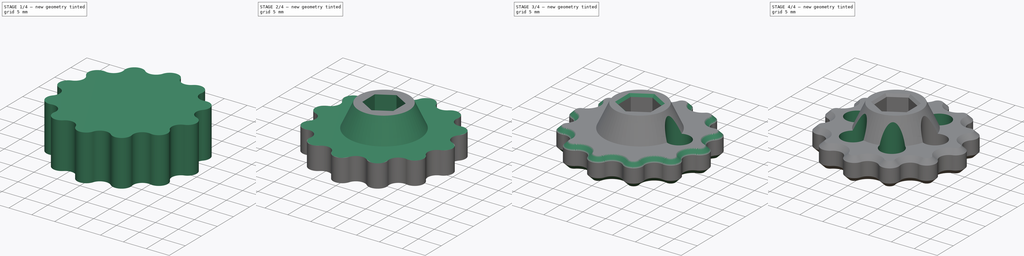
[diagram: build sequence overview — one tinted view per stage of 4, left to right]
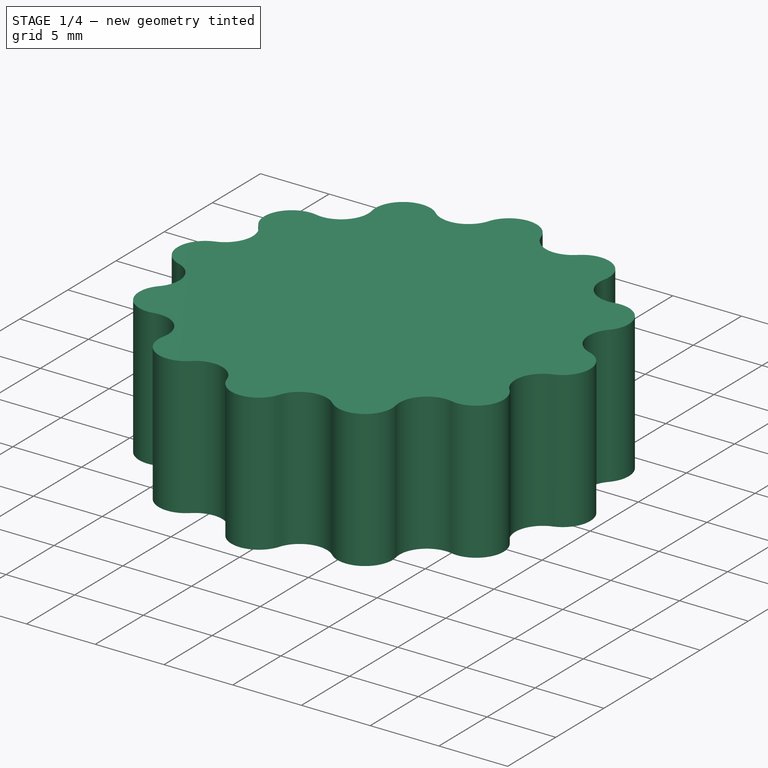
[diagram: stage 1 of 4 — iso view after this stage's code; geometry added in this stage tinted green]
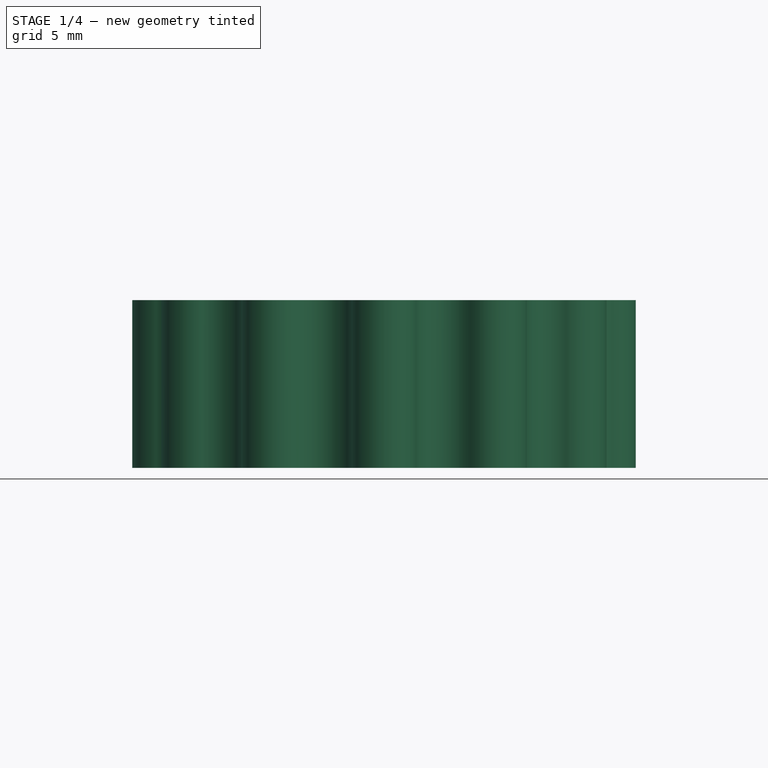
[diagram: stage 1 of 4 — front view after this stage's code; geometry added in this stage tinted green]
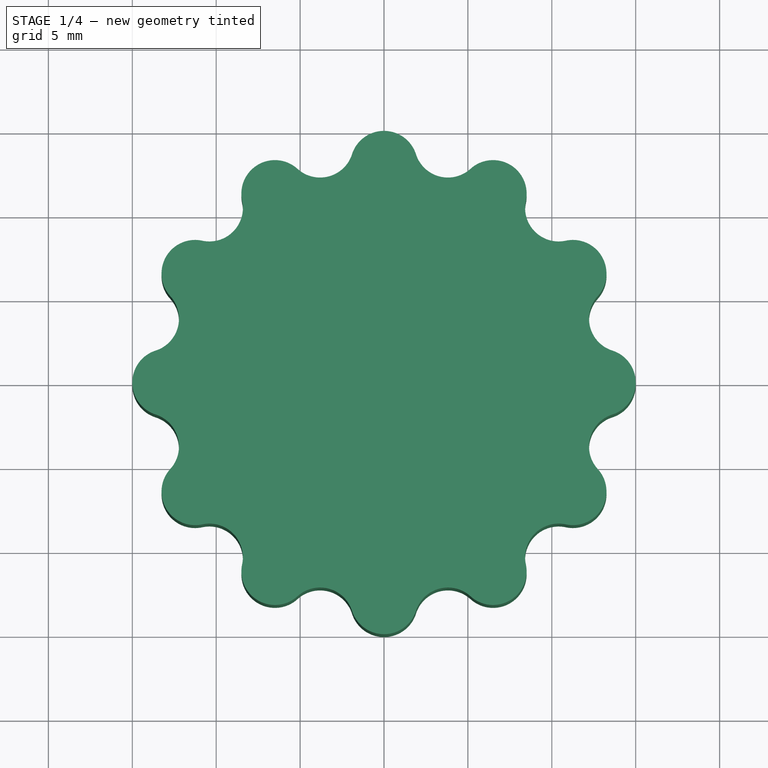
[diagram: stage 1 of 4 — top view after this stage's code; geometry added in this stage tinted green]
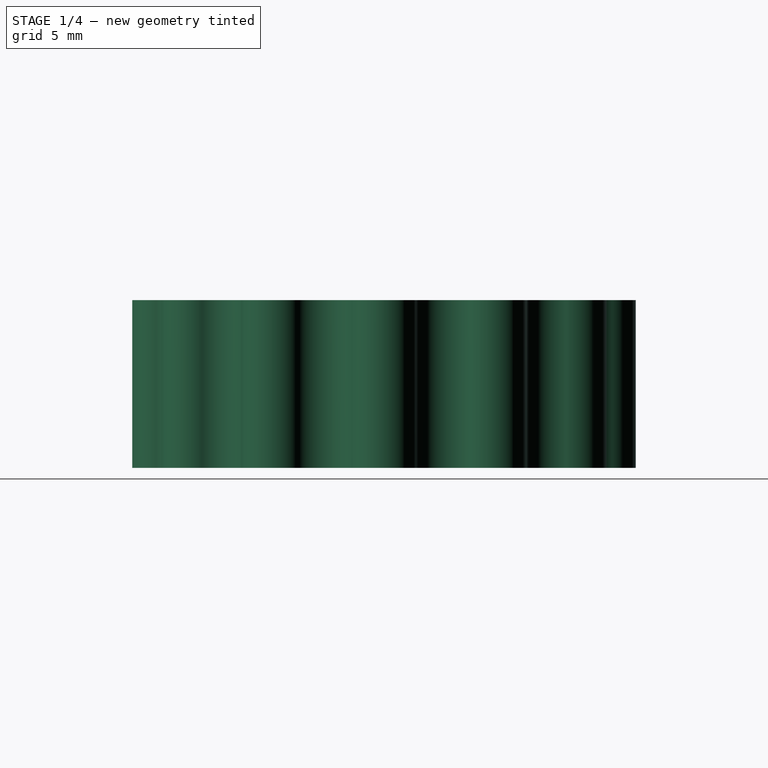
[diagram: stage 1 of 4 — right view after this stage's code; geometry added in this stage tinted green]
FCSTD DOCUMENT  (FreeCAD 0.20R24451 (Git))
Label: Bit-Handrad
License: All rights reserved
LicenseURL: http://en.wikipedia.org/wiki/All_rights_reserved
objects: Sketcher::SketchObject×5, PartDesign::Pocket×3, PartDesign::Chamfer×3, PartDesign::PolarPattern×2, PartDesign::Pad×1, PartDesign::Groove×1, PartDesign::Body×1
note: 24 computed .brp shape members not serialized (recipe doc carries the construction recipe); baked Part::Feature solids carry a one-line shape summary decoded from their .brp

FEATURE [Sketcher::SketchObject] Sketch
  FullyConstrained = true
  MapMode = 5
  Support = -> [XY_Plane]
  sketch-geometry (5):
    g0: ArcOfCircle CenterX=0 CenterY=13 CenterZ=0 NormalX=0 NormalY=0 NormalZ=1 AngleXU=0 Radius=2 StartAngle=0.309569 EndAngle=1.5708
    g1: ArcOfCircle CenterX=3.80986 CenterY=14.2186 CenterZ=0 NormalX=0 NormalY=0 NormalZ=1 AngleXU=0 Radius=2 StartAngle=3.45116 EndAngle=5.45002
    g2: ArcOfCircle CenterX=6.5 CenterY=11.2583 CenterZ=0 NormalX=0 NormalY=0 NormalZ=1 AngleXU=0 Radius=2 StartAngle=1.0472 EndAngle=2.30843
    g3: LineSegment StartX=0 StartY=15 StartZ=0 EndX=0 EndY=0 EndZ=0
    g4: LineSegment StartX=0 StartY=0 StartZ=0 EndX=7.5 EndY=12.9904 EndZ=0
  constraints (15):
    c: PointOnObject(g0,g-2)
    c: PointOnObject(g0,g-2)
    c: Equal(g0,g1)
    c: Equal(g1,g2)
    c: Tangent(g1,g0) = 1.5708
    c: Tangent(g2,g1) = 1.5708
    c: Coincident(g3,g-1)
    c: Coincident(g3,g4)
    c: Coincident(g4,g2)
    c: PointOnObject(g2,g4)
    c: Coincident(g0,g3)
    c: Equal(g3,g4)
    c: Radius(g0) = 2
    c: Angle(g4,g3) = 0.523599
    c: DistanceY(g3,g3) = 15
FEATURE [PartDesign::Pad] Pad
  Direction = (1,1,1)
  Length = 10
  Length2 = 100
  Profile = -> Sketch
  Refine = true
  Type = 0
FEATURE [PartDesign::PolarPattern] PolarPattern
  Angle = 360
  Axis = -> Sketch [N_Axis]
  BaseFeature = -> Pad
  Occurrences = 12
  Originals = -> [Pad]
  Overlap = 0
  Refine = true
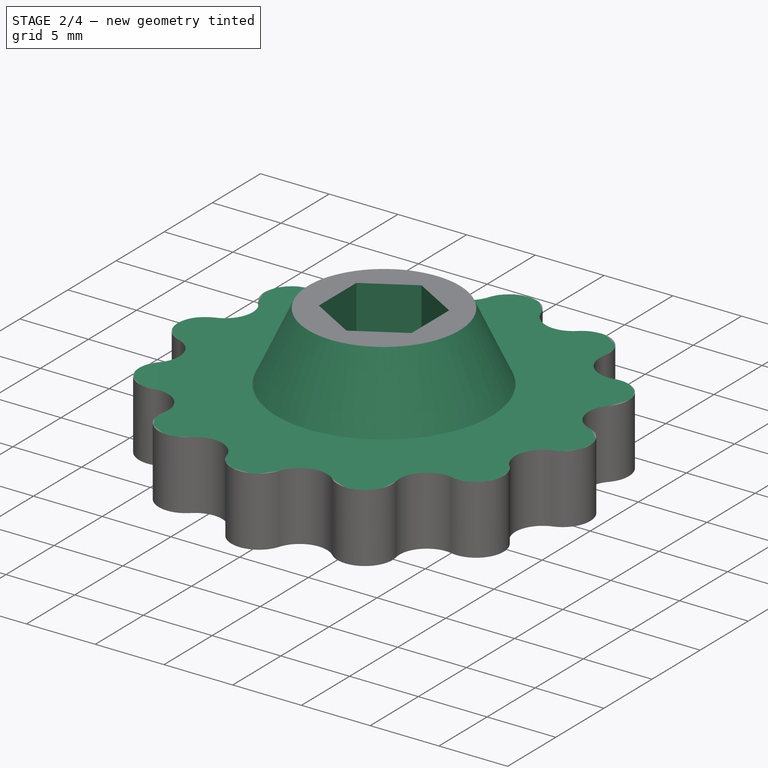
[diagram: stage 2 of 4 — iso view after this stage's code; geometry added in this stage tinted green]
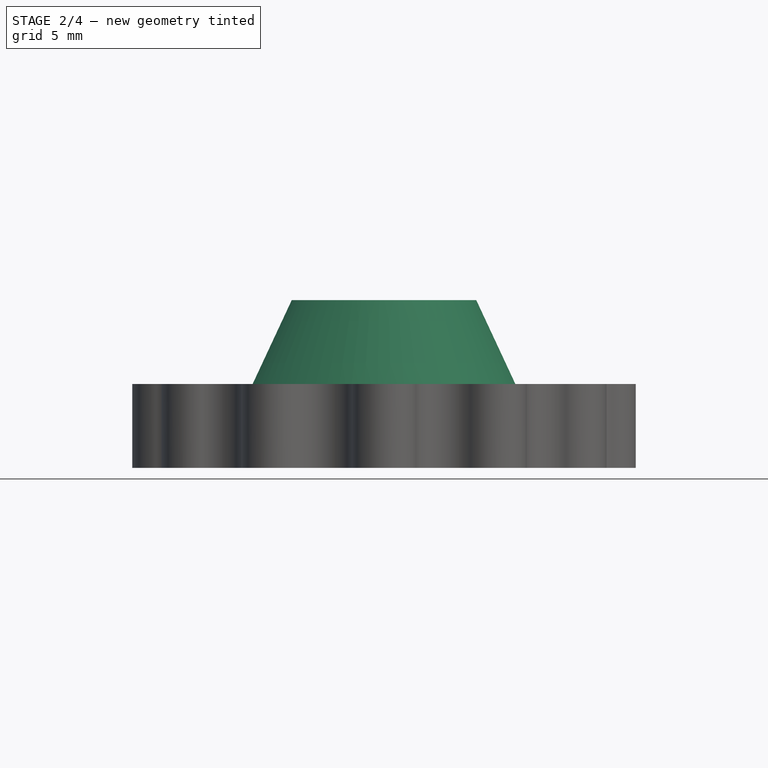
[diagram: stage 2 of 4 — front view after this stage's code; geometry added in this stage tinted green]
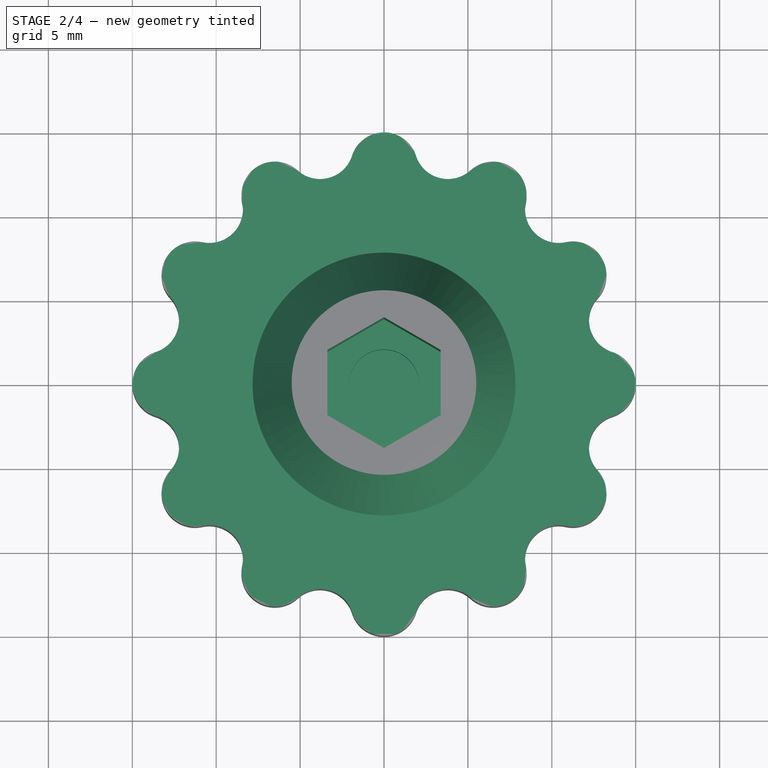
[diagram: stage 2 of 4 — top view after this stage's code; geometry added in this stage tinted green]
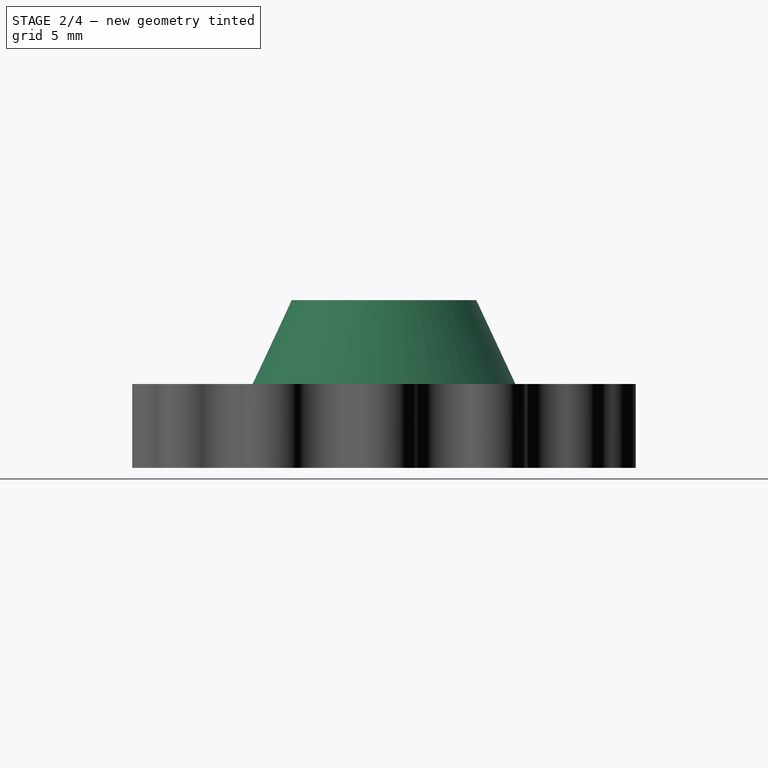
[diagram: stage 2 of 4 — right view after this stage's code; geometry added in this stage tinted green]
FEATURE [Sketcher::SketchObject] Sketch002  label="Sk Hex-Aufnahme"
  AttachmentOffset = pos=(0,0,3) rot=(0,0,1;0rad)
  FullyConstrained = true
  MapMode = 5
  Placement = pos=(0,0,3) rot=(0,0,1;0rad)
  Support = -> [XY_Plane]
  sketch-geometry (7):
    g0: LineSegment StartX=3.375 StartY=-1.94856 StartZ=0 EndX=3.375 EndY=1.94856 EndZ=0
    g1: LineSegment StartX=3.375 StartY=1.94856 StartZ=0 EndX=4e-16 EndY=3.89711 EndZ=0
    g2: LineSegment StartX=4e-16 StartY=3.89711 StartZ=0 EndX=-3.375 EndY=1.94856 EndZ=0
    g3: LineSegment StartX=-3.375 StartY=1.94856 StartZ=0 EndX=-3.375 EndY=-1.94856 EndZ=0
    g4: LineSegment StartX=-3.375 StartY=-1.94856 StartZ=0 EndX=0 EndY=-3.89711 EndZ=0
    g5: LineSegment StartX=0 StartY=-3.89711 StartZ=0 EndX=3.375 EndY=-1.94856 EndZ=0
    g6: Circle CenterX=0 CenterY=0 CenterZ=0 NormalX=0 NormalY=0 NormalZ=1 AngleXU=0 Radius=3.89711
  constraints (16):
    c: Coincident(g0,g1)
    c: Coincident(g1,g2)
    c: Coincident(g2,g3)
    c: Coincident(g3,g4)
    c: Coincident(g4,g5)
    c: Coincident(g5,g0)
    c: Equal(g0, g1-g5) x5
    c: PointOnObject(g0,g6)
    c: PointOnObject(g1,g6)
    c: PointOnObject(g2,g6)
    c: PointOnObject(g3,g6)
    c: PointOnObject(g4,g6)
    c: PointOnObject(g5,g6)
    c: Coincident(g6,g-1)
    c: Vertical(g0)
    c: DistanceX(g3,g0) = 6.75
FEATURE [PartDesign::Pocket] Pocket001  label="Hex-Aufnahme"
  BaseFeature = -> PolarPattern
  Length = 5
  Length2 = 100
  Profile = -> Sketch002
  Refine = true
  Reversed = true
  Type = 1
FEATURE [Sketcher::SketchObject] Sketch003  label="Sk Magnetaufnahme"
  AttachmentOffset = pos=(0,0,3) rot=(0,0,1;0rad)
  FullyConstrained = true
  MapMode = 5
  Placement = pos=(0,0,3) rot=(0,0,1;0rad)
  Support = -> [XY_Plane]
  sketch-geometry (1):
    g0: Circle CenterX=0 CenterY=0 CenterZ=0 NormalX=0 NormalY=0 NormalZ=1 AngleXU=0 Radius=2.1
  constraints (2):
    c: Coincident(g0,g-1)
    c: Diameter(g0) = 4.2
FEATURE [PartDesign::Pocket] Pocket  label="Magnetaufnahme"
  BaseFeature = -> Pocket001
  Length = 2
  Length2 = 100
  Profile = -> Sketch003
  Refine = true
  Type = 0
FEATURE [Sketcher::SketchObject] Sketch004  label="Sk Durchbruch"
  FullyConstrained = true
  MapMode = 5
  Support = -> [XY_Plane]
  sketch-geometry (1):
    g0: Circle CenterX=8.5 CenterY=0 CenterZ=0 NormalX=0 NormalY=0 NormalZ=1 AngleXU=0 Radius=2.5
  constraints (3):
    c: PointOnObject(g0,g-1)
    c: Diameter(g0) = 5
    c: DistanceX(g-1,g0) = 8.5
FEATURE [Sketcher::SketchObject] Sketch005  label="Sk Abstufung"
  FullyConstrained = true
  MapMode = 5
  Placement = pos=(0,0,0) rot=(0.57735,0.57735,0.57735;2.0944rad)
  Support = -> [YZ_Plane]
  expr: Constraints[7] = Pad.Length
  sketch-geometry (4):
    g0: LineSegment StartX=5.5 StartY=10 StartZ=0 EndX=7.83154 EndY=5 EndZ=0
    g1: LineSegment StartX=7.83154 StartY=5 StartZ=0 EndX=17.5 EndY=5 EndZ=0
    g2: LineSegment StartX=17.5 StartY=5 StartZ=0 EndX=17.5 EndY=10 EndZ=0
    g3: LineSegment StartX=17.5 StartY=10 StartZ=0 EndX=5.5 EndY=10 EndZ=0
  constraints (12):
    c: Coincident(g0,g1)
    c: Horizontal(g1)
    c: Coincident(g1,g2)
    c: Vertical(g2)
    c: Coincident(g2,g3)
    c: Coincident(g3,g0)
    c: Horizontal(g3)
    c: DistanceY(g-1,g0) = 10
    c: DistanceY(g2,g2) = 5
    c: DistanceX(g-1,g0) = 5.5
    c: DistanceX(g3,g3) = 12
    c: Angle(g1,g0) = 2.00713
FEATURE [PartDesign::Groove] Groove  label="Abstufung"
  Angle = 360
  Axis = (-3e-16,3e-16,1)
  Base = (0,0,0)
  BaseFeature = -> Pocket
  Profile = -> Sketch005
  ReferenceAxis = -> Z_Axis
  Refine = true
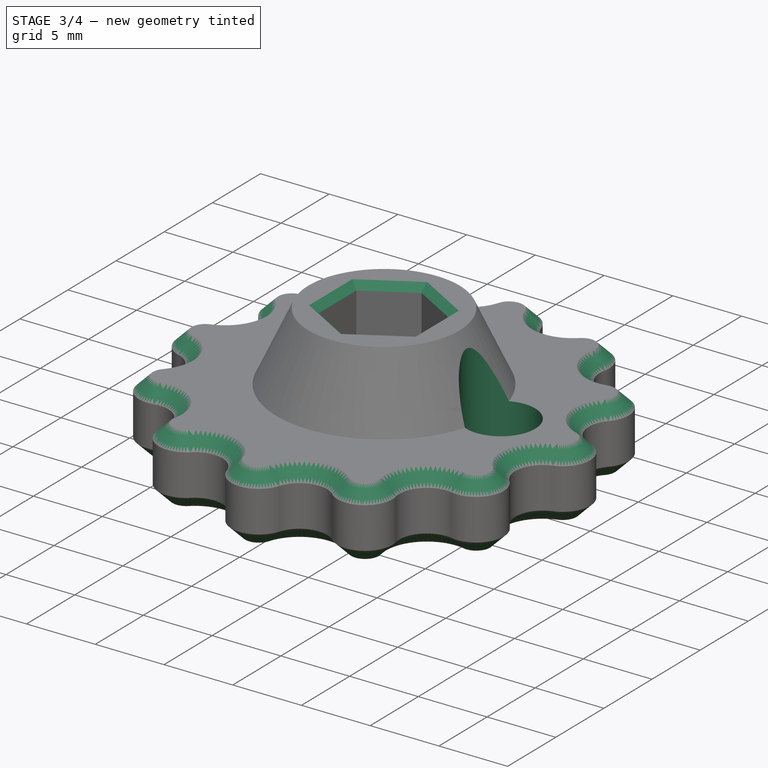
[diagram: stage 3 of 4 — iso view after this stage's code; geometry added in this stage tinted green]
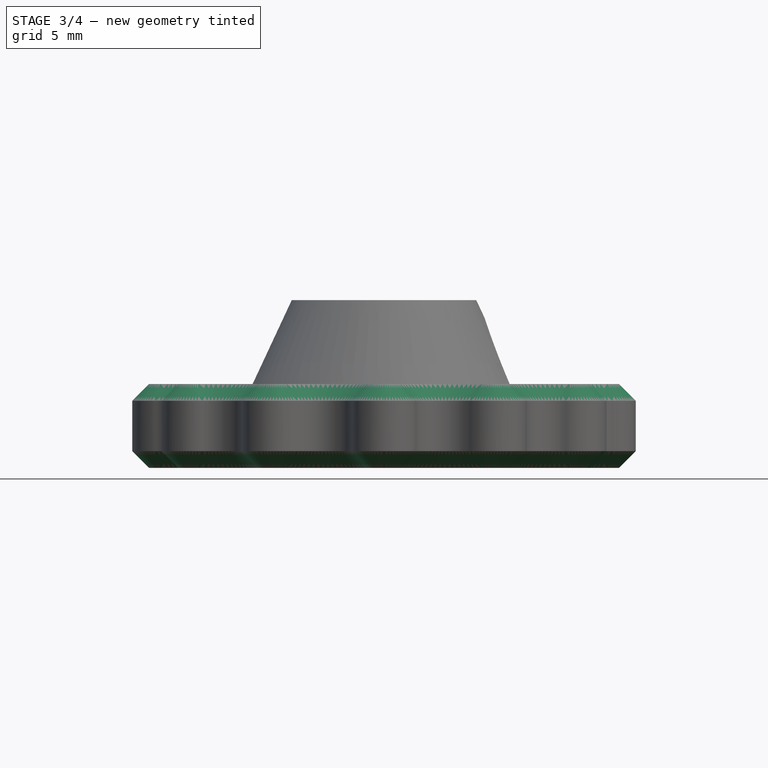
[diagram: stage 3 of 4 — front view after this stage's code; geometry added in this stage tinted green]
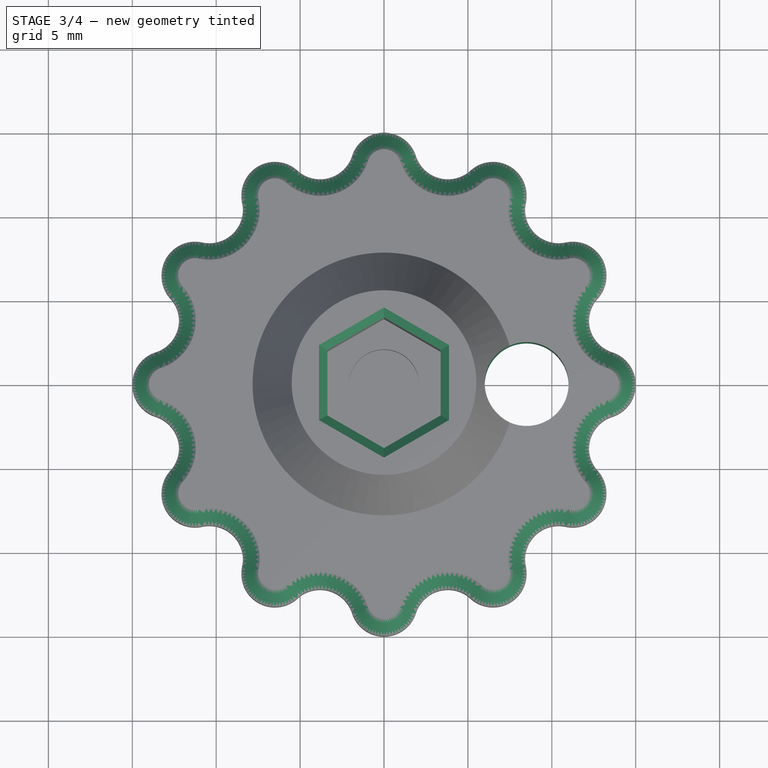
[diagram: stage 3 of 4 — top view after this stage's code; geometry added in this stage tinted green]
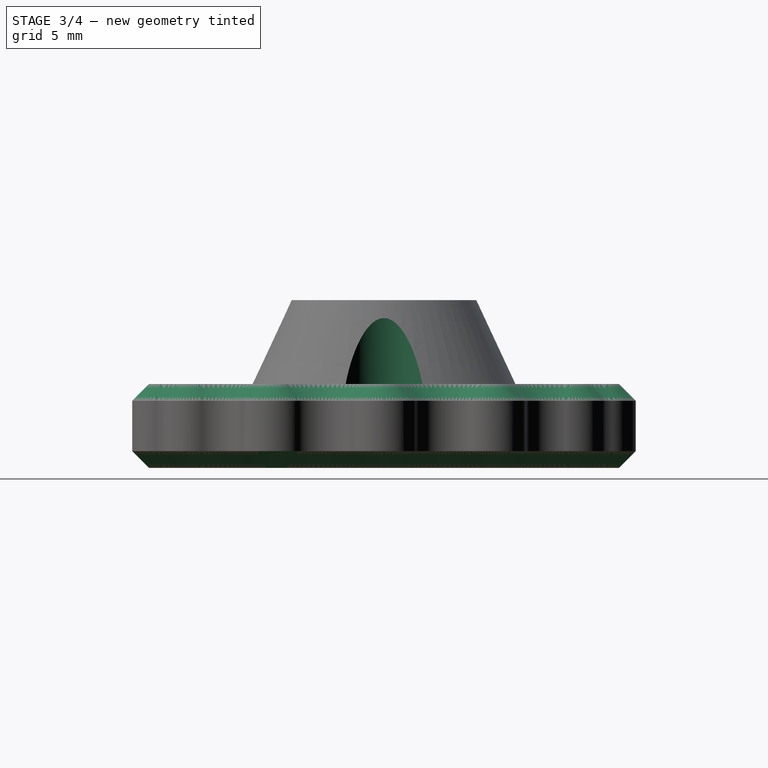
[diagram: stage 3 of 4 — right view after this stage's code; geometry added in this stage tinted green]
FEATURE [PartDesign::Chamfer] Chamfer  label="Fase außen"
  Angle = 45
  Base = -> Groove [Edge57,Edge17]
  BaseFeature = -> Groove
  ChamferType = 0
  FlipDirection = false
  Refine = true
  Size = 1
  Size2 = 1
  SupportTransform = false
FEATURE [PartDesign::Chamfer] Chamfer001  label="Fase Hexaufnahme"
  Angle = 45
  Base = -> Chamfer [Edge209,Edge211,Edge213,Edge208,Edge210,Edge212]
  BaseFeature = -> Chamfer
  ChamferType = 0
  FlipDirection = false
  Refine = true
  Size = 0.5
  Size2 = 1
  SupportTransform = false
FEATURE [PartDesign::Pocket] Pocket002  label="Durchbruch"
  BaseFeature = -> Chamfer001
  Length = 5
  Length2 = 100
  Midplane = true
  Profile = -> Sketch004
  Refine = true
  Type = 1
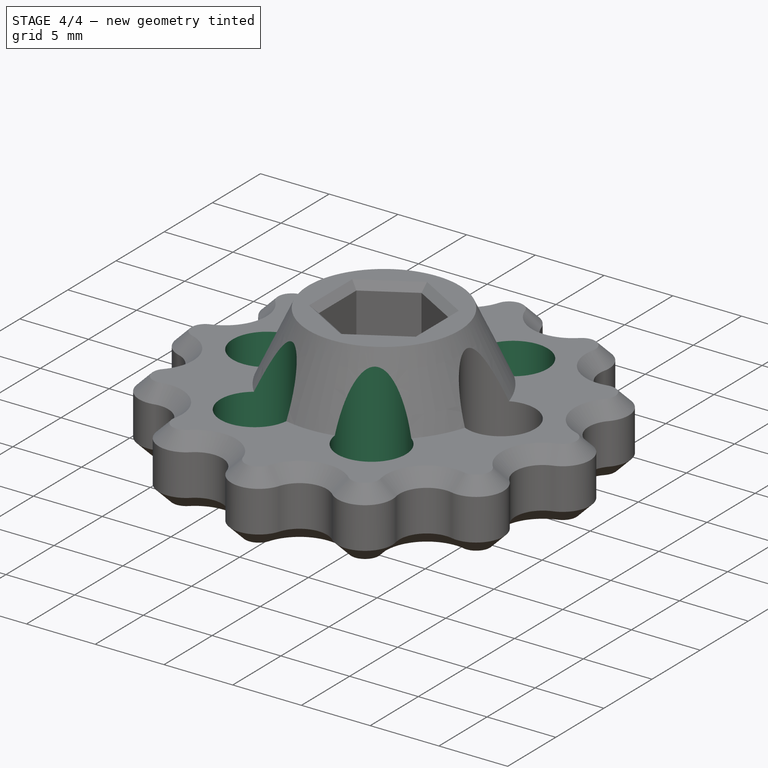
[diagram: stage 4 of 4 — iso view after this stage's code; geometry added in this stage tinted green]
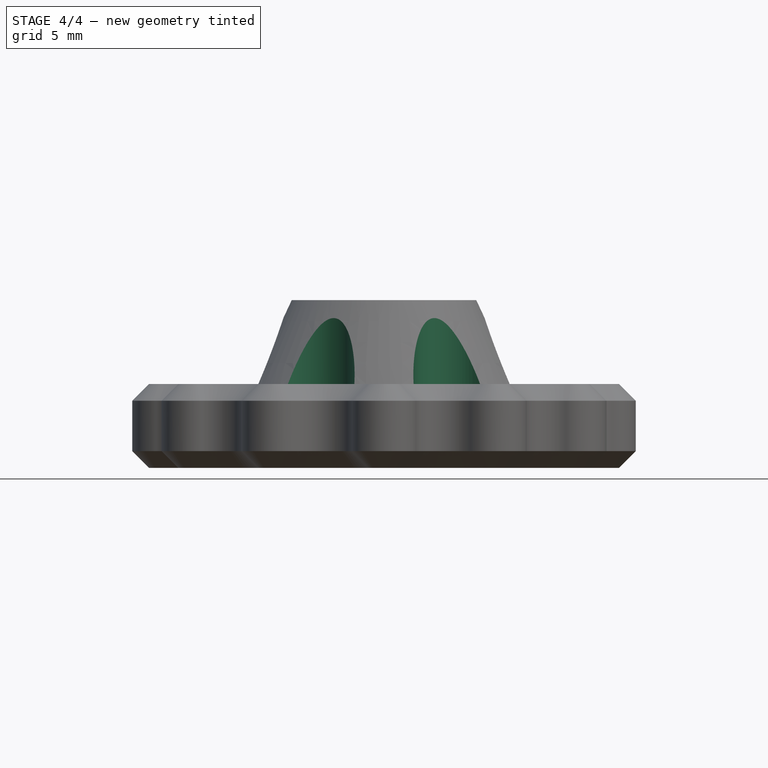
[diagram: stage 4 of 4 — front view after this stage's code; geometry added in this stage tinted green]
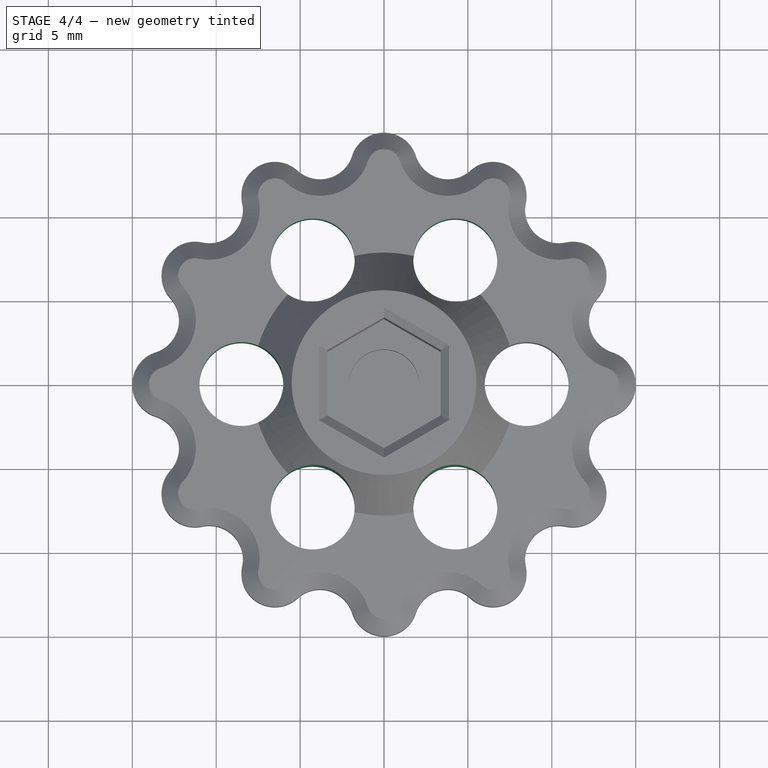
[diagram: stage 4 of 4 — top view after this stage's code; geometry added in this stage tinted green]
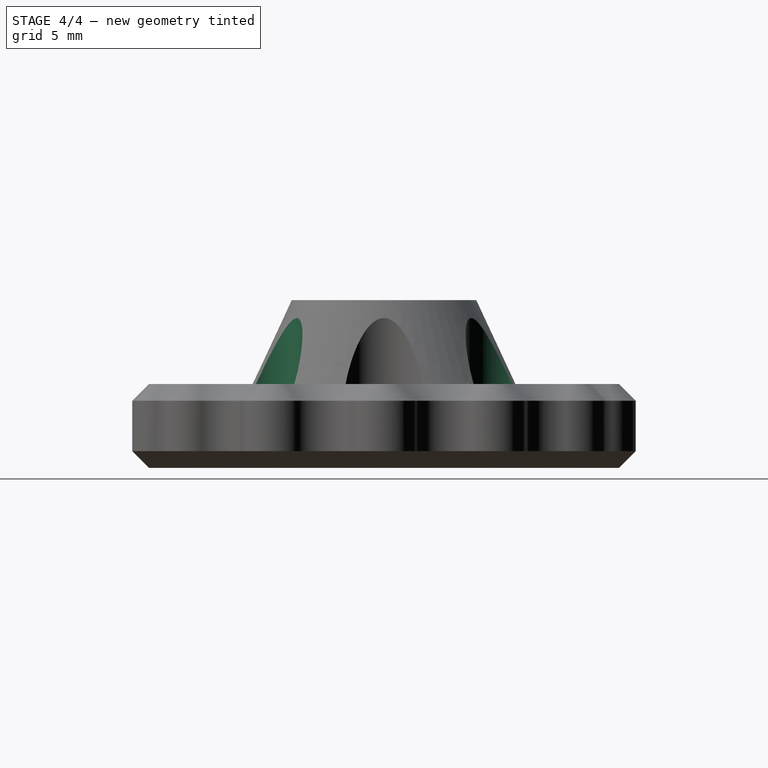
[diagram: stage 4 of 4 — right view after this stage's code; geometry added in this stage tinted green]
FEATURE [PartDesign::Chamfer] Chamfer002  label="Fase Durchbruch"
  Angle = 45
  Base = -> Pocket002 [Edge63]
  BaseFeature = -> Pocket002
  ChamferType = 0
  FlipDirection = false
  Refine = true
  Size = 0.5
  Size2 = 1
  SupportTransform = false
FEATURE [PartDesign::PolarPattern] PolarPattern001  label="Durchbruch ×6"
  Angle = 360
  Axis = -> Z_Axis
  BaseFeature = -> Chamfer002
  Occurrences = 6
  Originals = -> [Pocket002,Chamfer002]
  Overlap = 0
  Refine = true
FEATURE [PartDesign::Body] Body
  Group = -> [Sketch,Pad,PolarPattern,Sketch002,Pocket001,Sketch003,Pocket,Sketch005,Groove,Chamfer,Chamfer001,Sketch004,Pocket002,Chamfer002,PolarPattern001]
  Origin = -> Origin
  Tip = -> PolarPattern001
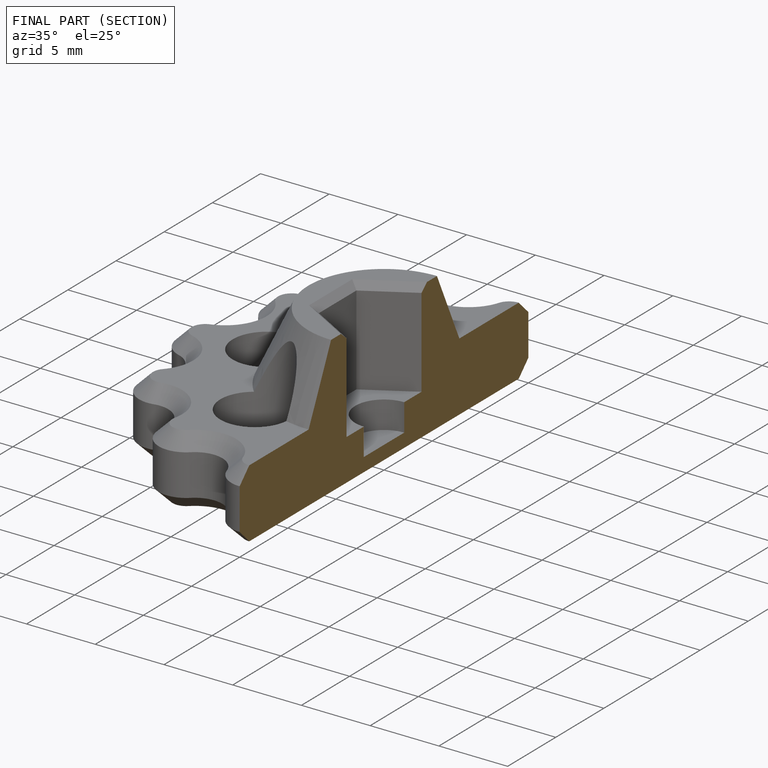
[diagram: finished part — half-section view (interior)]
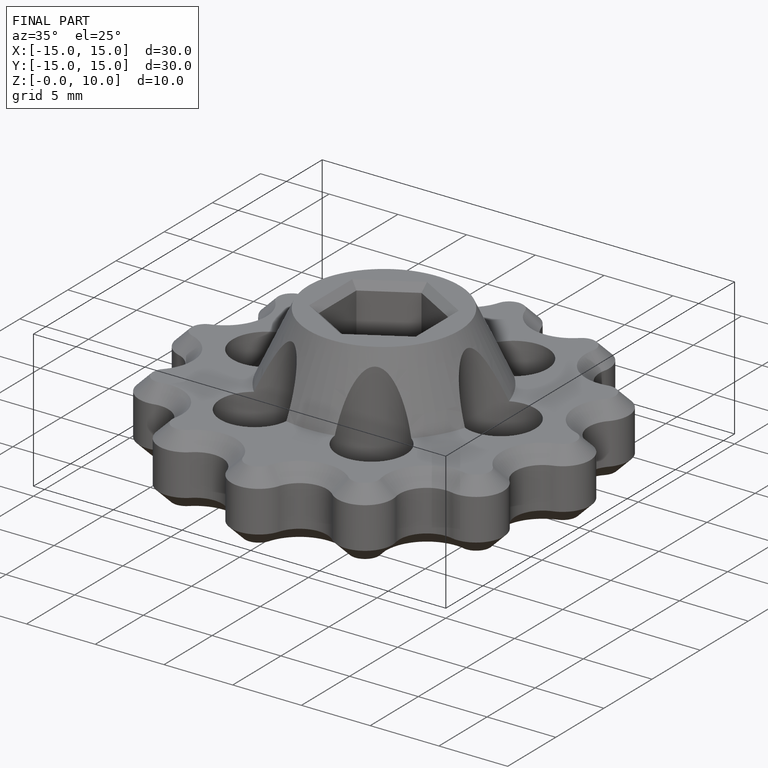
[diagram: finished part — iso view with bounding-box wireframe]
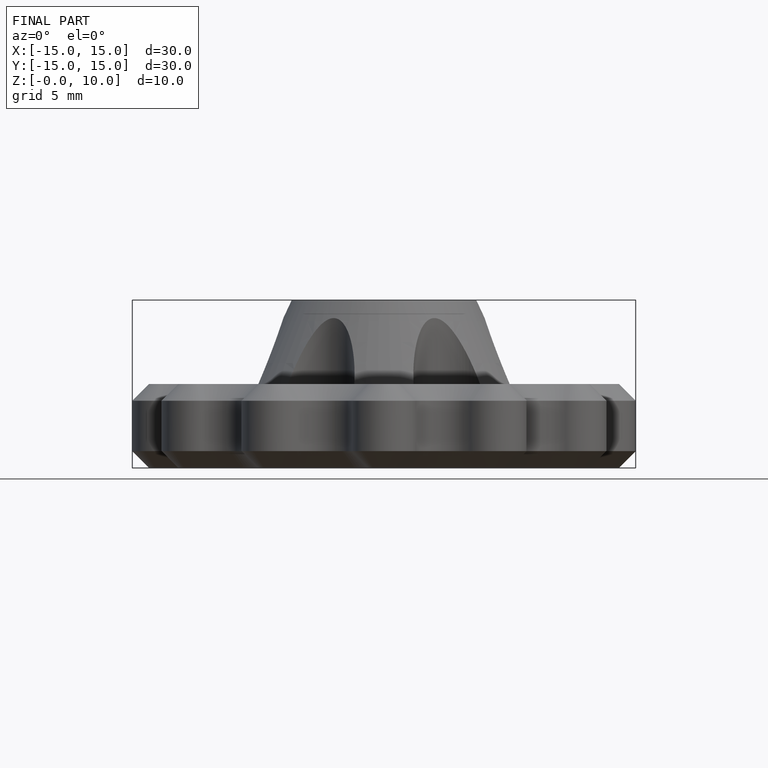
[diagram: finished part — front view with bounding-box wireframe]
